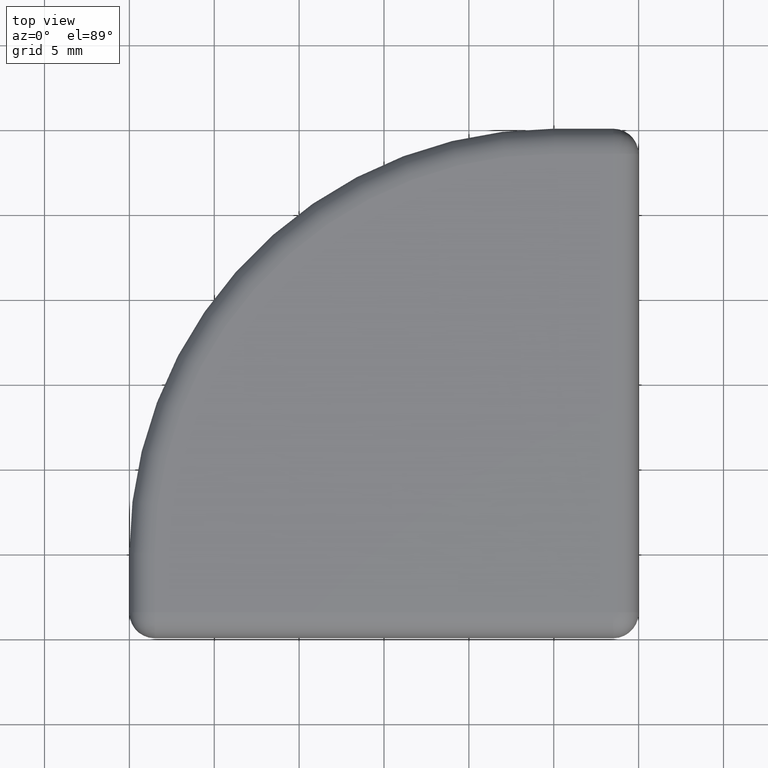
[diagram: clean part render]
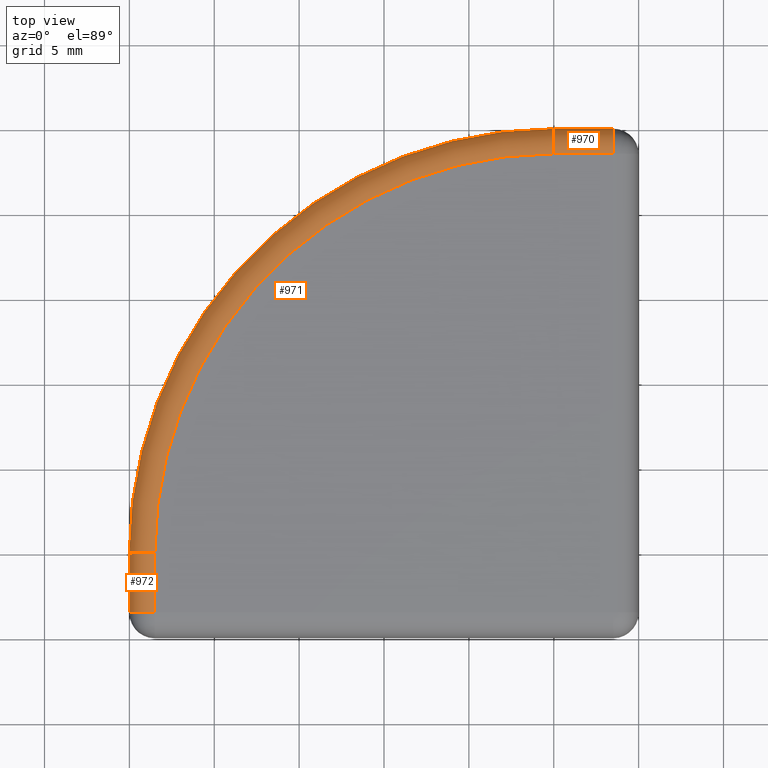
[diagram: same view with one multi-face feature highlighted, each face labeled with its STEP entity id]
A machine part, top view. The highlighted faces form ONE feature: a constant-radius fillet chain: 3 tangent blend faces with common blend radius 1.5 mm. The faces share edges in the B-rep.
Their STEP definitions:
[1] entity #970 (Cylinder):
#101=LINE('',#1731,#168);
#102=LINE('',#1732,#169);
#168=VECTOR('',#1438,10.);
#169=VECTOR('',#1439,10.);
#207=CYLINDRICAL_SURFACE('',#1121,1.5);
#265=FACE_OUTER_BOUND('',#330,.T.);
#330=EDGE_LOOP('',(#833,#834,#835,#836));
#405=CIRCLE('',#1118,1.5);
#407=CIRCLE('',#1122,1.5);
#481=VERTEX_POINT('',#1716);
#482=VERTEX_POINT('',#1718);
#485=VERTEX_POINT('',#1728);
#486=VERTEX_POINT('',#1729);
#608=EDGE_CURVE('',#481,#482,#405,.F.);
#612=EDGE_CURVE('',#485,#486,#407,.T.);
#613=EDGE_CURVE('',#486,#481,#101,.T.);
#614=EDGE_CURVE('',#482,#485,#102,.T.);
#833=ORIENTED_EDGE('',*,*,#612,.T.);
#834=ORIENTED_EDGE('',*,*,#613,.T.);
#835=ORIENTED_EDGE('',*,*,#608,.T.);
#836=ORIENTED_EDGE('',*,*,#614,.T.);
#970=ADVANCED_FACE('',(#265),#207,.T.);
#1118=AXIS2_PLACEMENT_3D('',#1720,#1426,#1427);
#1121=AXIS2_PLACEMENT_3D('',#1727,#1434,#1435);
#1122=AXIS2_PLACEMENT_3D('',#1730,#1436,#1437);
#1426=DIRECTION('center_axis',(1.,1.48029736616688E-15,0.));
#1427=DIRECTION('ref_axis',(0.,0.,1.));
#1434=DIRECTION('center_axis',(-1.,-8.88178419700124E-16,0.));
#1435=DIRECTION('ref_axis',(-1.04672830578918E-15,0.707106781186547,0.707106781186548));
#1436=DIRECTION('center_axis',(1.,7.40148683083438E-16,0.));
#1437=DIRECTION('ref_axis',(-7.40148683083438E-16,1.,0.));
#1438=DIRECTION('',(1.,8.88178419700124E-16,0.));
#1439=DIRECTION('',(-1.,-8.88178419700124E-16,0.));
#1716=CARTESIAN_POINT('',(13.5,13.5,2.5));
#1718=CARTESIAN_POINT('',(13.5,15.,1.));
#1720=CARTESIAN_POINT('Origin',(13.5,13.5,1.));
#1727=CARTESIAN_POINT('Origin',(8.82361806591141,13.5,1.));
#1728=CARTESIAN_POINT('',(9.99999999999999,15.,1.));
#1729=CARTESIAN_POINT('',(9.99999999999999,13.5,2.5));
#1730=CARTESIAN_POINT('Origin',(9.99999999999999,13.5,1.));
#1731=CARTESIAN_POINT('',(8.82361806591141,13.5,2.5));
#1732=CARTESIAN_POINT('',(8.82361806591141,15.,1.));
[2] entity #971 (Torus):
#41=TOROIDAL_SURFACE('',#1123,23.5,1.5);
#266=FACE_OUTER_BOUND('',#331,.T.);
#331=EDGE_LOOP('',(#837,#838,#839,#840));
#407=CIRCLE('',#1122,1.5);
#408=CIRCLE('',#1124,1.5);
#409=CIRCLE('',#1125,23.5);
#410=CIRCLE('',#1126,25.);
#485=VERTEX_POINT('',#1728);
#486=VERTEX_POINT('',#1729);
#487=VERTEX_POINT('',#1734);
#488=VERTEX_POINT('',#1735);
#612=EDGE_CURVE('',#485,#486,#407,.T.);
#615=EDGE_CURVE('',#487,#488,#408,.T.);
#616=EDGE_CURVE('',#488,#486,#409,.T.);
#617=EDGE_CURVE('',#485,#487,#410,.T.);
#837=ORIENTED_EDGE('',*,*,#615,.T.);
#838=ORIENTED_EDGE('',*,*,#616,.T.);
#839=ORIENTED_EDGE('',*,*,#612,.F.);
#840=ORIENTED_EDGE('',*,*,#617,.T.);
#971=ADVANCED_FACE('',(#266),#41,.T.);
#1122=AXIS2_PLACEMENT_3D('',#1730,#1436,#1437);
#1123=AXIS2_PLACEMENT_3D('',#1733,#1440,#1441);
#1124=AXIS2_PLACEMENT_3D('',#1736,#1442,#1443);
#1125=AXIS2_PLACEMENT_3D('',#1737,#1444,#1445);
#1126=AXIS2_PLACEMENT_3D('',#1738,#1446,#1447);
#1436=DIRECTION('center_axis',(1.,7.40148683083438E-16,0.));
#1437=DIRECTION('ref_axis',(-7.40148683083438E-16,1.,0.));
#1440=DIRECTION('center_axis',(0.,0.,1.));
#1441=DIRECTION('ref_axis',(1.,0.,0.));
#1442=DIRECTION('center_axis',(-2.96059473233376E-15,1.,0.));
#1443=DIRECTION('ref_axis',(-1.,-2.96059473233376E-15,0.));
#1444=DIRECTION('center_axis',(0.,0.,-1.));
#1445=DIRECTION('ref_axis',(-0.707106781186548,0.707106781186547,0.));
#1446=DIRECTION('center_axis',(0.,0.,1.));
#1447=DIRECTION('ref_axis',(-0.707106781186548,0.707106781186547,0.));
#1728=CARTESIAN_POINT('',(9.99999999999999,15.,1.));
#1729=CARTESIAN_POINT('',(9.99999999999999,13.5,2.5));
#1730=CARTESIAN_POINT('Origin',(9.99999999999999,13.5,1.));
#1733=CARTESIAN_POINT('Origin',(10.,-10.,1.));
#1734=CARTESIAN_POINT('',(-15.,-10.,1.));
#1735=CARTESIAN_POINT('',(-13.5,-10.,2.5));
#1736=CARTESIAN_POINT('Origin',(-13.5,-10.,1.));
#1737=CARTESIAN_POINT('Origin',(10.,-10.,2.5));
#1738=CARTESIAN_POINT('Origin',(10.,-10.,1.));
[3] entity #972 (Cylinder):
#103=LINE('',#1740,#170);
#104=LINE('',#1741,#171);
#170=VECTOR('',#1450,10.);
#171=VECTOR('',#1451,10.);
#208=CYLINDRICAL_SURFACE('',#1127,1.5);
#267=FACE_OUTER_BOUND('',#332,.T.);
#332=EDGE_LOOP('',(#841,#842,#843,#844));
#399=CIRCLE('',#1109,1.5);
#408=CIRCLE('',#1124,1.5);
#475=VERTEX_POINT('',#1699);
#476=VERTEX_POINT('',#1700);
#487=VERTEX_POINT('',#1734);
#488=VERTEX_POINT('',#1735);
#598=EDGE_CURVE('',#475,#476,#399,.F.);
#615=EDGE_CURVE('',#487,#488,#408,.T.);
#618=EDGE_CURVE('',#476,#488,#103,.T.);
#619=EDGE_CURVE('',#487,#475,#104,.T.);
#841=ORIENTED_EDGE('',*,*,#598,.T.);
#842=ORIENTED_EDGE('',*,*,#618,.T.);
#843=ORIENTED_EDGE('',*,*,#615,.F.);
#844=ORIENTED_EDGE('',*,*,#619,.T.);
#972=ADVANCED_FACE('',(#267),#208,.T.);
#1109=AXIS2_PLACEMENT_3D('',#1701,#1404,#1405);
#1124=AXIS2_PLACEMENT_3D('',#1736,#1442,#1443);
#1127=AXIS2_PLACEMENT_3D('',#1739,#1448,#1449);
#1404=DIRECTION('center_axis',(0.,-1.,0.));
#1405=DIRECTION('ref_axis',(-1.,0.,0.));
#1442=DIRECTION('center_axis',(-2.96059473233376E-15,1.,0.));
#1443=DIRECTION('ref_axis',(-1.,-2.96059473233376E-15,0.));
#1448=DIRECTION('center_axis',(0.,-1.,0.));
#1449=DIRECTION('ref_axis',(-0.707106781186547,0.,0.707106781186548));
#1450=DIRECTION('',(0.,1.,0.));
#1451=DIRECTION('',(0.,-1.,0.));
#1699=CARTESIAN_POINT('',(-15.,-13.5,1.));
#1700=CARTESIAN_POINT('',(-13.5,-13.5,2.5));
#1701=CARTESIAN_POINT('Origin',(-13.5,-13.5,1.));
#1734=CARTESIAN_POINT('',(-15.,-10.,1.));
#1735=CARTESIAN_POINT('',(-13.5,-10.,2.5));
#1736=CARTESIAN_POINT('Origin',(-13.5,-10.,1.));
#1739=CARTESIAN_POINT('Origin',(-13.5,-6.32361806591142,1.));
#1740=CARTESIAN_POINT('',(-13.5,-6.32361806591142,2.5));
#1741=CARTESIAN_POINT('',(-15.,-6.32361806591142,1.));